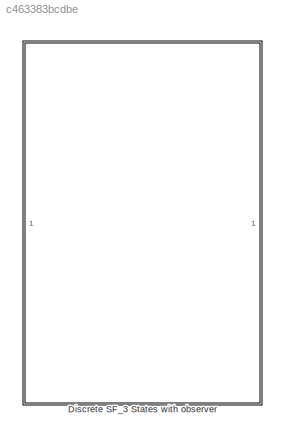
MODEL slx_c463383bcdbe
KIND model
CONFIG AbsTol = auto
CONFIG EnableMultiTasking = off
CONFIG FixedStep = auto
CONFIG MaxStep = auto
CONFIG MinStep = auto
CONFIG RelTol = 1e-3
CONFIG SampleTimeConstraint = Unconstrained
CONFIG Solver = VariableStepAuto
CONFIG SolverName = VariableStepAuto
CONFIG StartTime = 0.0
CONFIG StopTime = 10.0
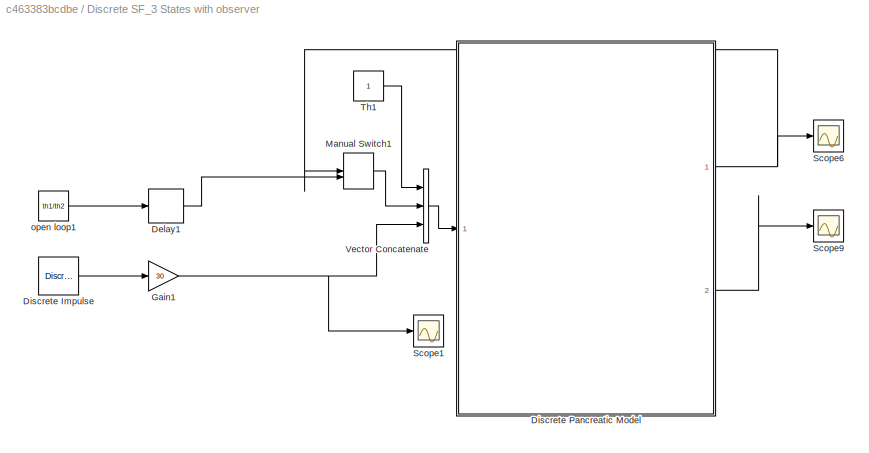
BLOCK [SubSystem] Discrete SF_3 States with observer
  Ports = []
  RequestExecContextInheritance = off
BLOCK [Delay] Discrete SF_3 States with observer/Delay1
  DelayLength = 5
  InitialCondition = th1/th2
  InputPortMap = u0
  Ports = [1, 1]
BLOCK [Reference] Discrete SF_3 States with observer/Discrete Impulse  REF=dspsrcs4/Discrete 
Impulse
  Ports = [0, 1]
  SourceBlock = dspsrcs4/Discrete \nImpulse
  SourceProductBaseCode = DS
  SourceProductName = DSP System Toolbox
  SourceType = Discrete Impulse
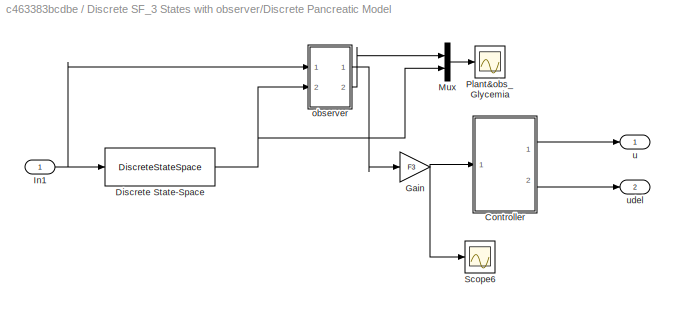
BLOCK [SubSystem] Discrete SF_3 States with observer/Discrete Pancreatic Model
  Ports = [1, 2]
  RequestExecContextInheritance = off
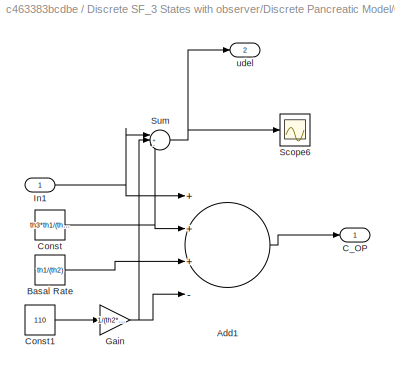
BLOCK [SubSystem] Discrete SF_3 States with observer/Discrete Pancreatic Model/Controller 
  Ports = [1, 2]
  RequestExecContextInheritance = off
BLOCK [Sum] Discrete SF_3 States with observer/Discrete Pancreatic Model/Controller /Add1
  InputSameDT = off
  Inputs = +++-
  OutDataTypeStr = Inherit: Inherit via internal rule
  Ports = [4, 1]
  SaturateOnIntegerOverflow = off
BLOCK [Constant] Discrete SF_3 States with observer/Discrete Pancreatic Model/Controller /Basal Rate
  Value = th1/(th2)
  VectorParams1D = off
BLOCK [Outport] Discrete SF_3 States with observer/Discrete Pancreatic Model/Controller /C_OP
  IconDisplay = Port number
BLOCK [Constant] Discrete SF_3 States with observer/Discrete Pancreatic Model/Controller /Const
  Value = th3*th1/(th2*47.88)
  VectorParams1D = off
BLOCK [Constant] Discrete SF_3 States with observer/Discrete Pancreatic Model/Controller /Const1
  Value = 110
  VectorParams1D = off
BLOCK [Gain] Discrete SF_3 States with observer/Discrete Pancreatic Model/Controller /Gain
  Gain = 1/(th2*47.88)
  OutDataTypeStr = Inherit: Inherit via internal rule
  ParamDataTypeStr = Inherit: Inherit via internal rule
  SaturateOnIntegerOverflow = off
BLOCK [Inport] Discrete SF_3 States with observer/Discrete Pancreatic Model/Controller /In1
  IconDisplay = Port number
BLOCK [Scope] Discrete SF_3 States with observer/Discrete Pancreatic Model/Controller /Scope6
  Floating = off
  NumInputPorts = 1
  Ports = [1]
  ScopeSpecificationString = Simulink.scopes.TimeScopeBlockCfg('CurrentConfiguration', extmgr.ConfigurationSet(extmgr.Configuration('Core','General UI',true),extmgr.Configuration('Core','Source UI',true),extmgr.Configuration('Sources','WiredSimulink',true,'DataLoggingVariableName','ScopeData2'),extmgr.Configuration('Visuals','Time Domain',true,'SerializedDisplays',{struct('MinYLimReal','-0.00787','MaxYLimReal','0.07046','YLab...<+1406ch>
BLOCK [Sum] Discrete SF_3 States with observer/Discrete Pancreatic Model/Controller /Sum
  IconShape = round
  InputSameDT = off
  Inputs = |+-+
  OutDataTypeStr = Inherit: Inherit via internal rule
  Ports = [3, 1]
  SaturateOnIntegerOverflow = off
BLOCK [Outport] Discrete SF_3 States with observer/Discrete Pancreatic Model/Controller /udel
  IconDisplay = Port number
  Port = 2
BLOCK [DiscreteStateSpace] Discrete SF_3 States with observer/Discrete Pancreatic Model/Discrete State-Space
  A = A3
  B = B3
  C = C_obs
  D = D_obs
  InitialCondition = [110; th1/th2; 0]
  SampleTime = -1
  StateName = Glycemia
BLOCK [Gain] Discrete SF_3 States with observer/Discrete Pancreatic Model/Gain
  Gain = F3
  Multiplication = Matrix(K*u)
  OutDataTypeStr = Inherit: Inherit via internal rule
  ParamDataTypeStr = Inherit: Inherit via internal rule
  SaturateOnIntegerOverflow = off
BLOCK [Inport] Discrete SF_3 States with observer/Discrete Pancreatic Model/In1
  IconDisplay = Port number
BLOCK [Mux] Discrete SF_3 States with observer/Discrete Pancreatic Model/Mux
  DisplayOption = bar
  Inputs = 2
  Ports = [2, 1]
BLOCK [Scope] Discrete SF_3 States with observer/Discrete Pancreatic Model/Plant&obs_Glycemia
  Floating = off
  NumInputPorts = 1
  Ports = [1]
  ScopeSpecificationString = Simulink.scopes.TimeScopeBlockCfg('CurrentConfiguration', extmgr.ConfigurationSet(extmgr.Configuration('Core','General UI',true),extmgr.Configuration('Core','Source UI',true),extmgr.Configuration('Sources','WiredSimulink',true,'DataLoggingVariableName','ScopeData1'),extmgr.Configuration('Visuals','Time Domain',true,'SerializedDisplays',{struct('MinYLimReal','95.4158','MaxYLimReal','240.45235','YLa...<+1416ch>
BLOCK [Scope] Discrete SF_3 States with observer/Discrete Pancreatic Model/Scope6
  Floating = off
  NumInputPorts = 1
  Ports = [1]
  ScopeSpecificationString = Simulink.scopes.TimeScopeBlockCfg('CurrentConfiguration', extmgr.ConfigurationSet(extmgr.Configuration('Core','General UI',true),extmgr.Configuration('Core','Source UI',true),extmgr.Configuration('Sources','WiredSimulink',true,'DataLoggingVariableName','ScopeData1'),extmgr.Configuration('Visuals','Time Domain',true,'SerializedDisplays',{struct('MinYLimReal','0.0017','MaxYLimReal','0.00211','YLabel...<+1401ch>
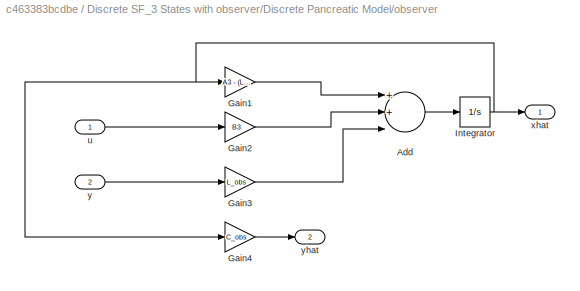
BLOCK [SubSystem] Discrete SF_3 States with observer/Discrete Pancreatic Model/observer
  Ports = [2, 2]
  RequestExecContextInheritance = off
BLOCK [Sum] Discrete SF_3 States with observer/Discrete Pancreatic Model/observer/Add
  InputSameDT = off
  Inputs = 3
  OutDataTypeStr = Inherit: Inherit via internal rule
  Ports = [3, 1]
  SaturateOnIntegerOverflow = off
BLOCK [Gain] Discrete SF_3 States with observer/Discrete Pancreatic Model/observer/Gain1
  Gain = A3 - (L_obs*C_obs)
  Multiplication = Matrix(K*u)
  OutDataTypeStr = Inherit: Inherit via internal rule
  ParamDataTypeStr = Inherit: Inherit via internal rule
  SaturateOnIntegerOverflow = off
BLOCK [Gain] Discrete SF_3 States with observer/Discrete Pancreatic Model/observer/Gain2
  Gain = B3
  Multiplication = Matrix(K*u)
  OutDataTypeStr = Inherit: Inherit via internal rule
  ParamDataTypeStr = Inherit: Inherit via internal rule
  SaturateOnIntegerOverflow = off
BLOCK [Gain] Discrete SF_3 States with observer/Discrete Pancreatic Model/observer/Gain3
  Gain = L_obs
  Multiplication = Matrix(K*u)
  OutDataTypeStr = Inherit: Inherit via internal rule
  ParamDataTypeStr = Inherit: Inherit via internal rule
  SaturateOnIntegerOverflow = off
BLOCK [Gain] Discrete SF_3 States with observer/Discrete Pancreatic Model/observer/Gain4
  Gain = C_obs
  Multiplication = Matrix(K*u)
  OutDataTypeStr = Inherit: Inherit via internal rule
  ParamDataTypeStr = Inherit: Inherit via internal rule
  SaturateOnIntegerOverflow = off
BLOCK [Integrator] Discrete SF_3 States with observer/Discrete Pancreatic Model/observer/Integrator
  InitialCondition = [110; th1/th2; 0]
  Ports = [1, 1]
BLOCK [Inport] Discrete SF_3 States with observer/Discrete Pancreatic Model/observer/u
  IconDisplay = Port number
BLOCK [Outport] Discrete SF_3 States with observer/Discrete Pancreatic Model/observer/xhat
  IconDisplay = Port number
BLOCK [Inport] Discrete SF_3 States with observer/Discrete Pancreatic Model/observer/y
  IconDisplay = Port number
  Port = 2
BLOCK [Outport] Discrete SF_3 States with observer/Discrete Pancreatic Model/observer/yhat
  IconDisplay = Port number
  Port = 2
BLOCK [Outport] Discrete SF_3 States with observer/Discrete Pancreatic Model/u
  IconDisplay = Port number
BLOCK [Outport] Discrete SF_3 States with observer/Discrete Pancreatic Model/udel
  IconDisplay = Port number
  Port = 2
BLOCK [Gain] Discrete SF_3 States with observer/Gain1
  Gain = 30
  OutDataTypeStr = Inherit: Inherit via internal rule
  ParamDataTypeStr = Inherit: Inherit via internal rule
  SaturateOnIntegerOverflow = off
BLOCK [ManualSwitch] Discrete SF_3 States with observer/Manual Switch1
BLOCK [Scope] Discrete SF_3 States with observer/Scope1
  Floating = off
  NumInputPorts = 1
  Ports = [1]
  ScopeSpecificationString = Simulink.scopes.TimeScopeBlockCfg('CurrentConfiguration', extmgr.ConfigurationSet(extmgr.Configuration('Core','General UI',true),extmgr.Configuration('Core','Source UI',true),extmgr.Configuration('Sources','WiredSimulink',true,'DataLoggingVariableName','ScopeData2'),extmgr.Configuration('Visuals','Time Domain',true,'SerializedDisplays',{struct('MinYLimReal','-1.00000','MaxYLimReal','1.00000','YLab...<+1520ch>
BLOCK [Scope] Discrete SF_3 States with observer/Scope6
  Floating = off
  NumInputPorts = 1
  Ports = [1]
  ScopeSpecificationString = Simulink.scopes.TimeScopeBlockCfg('CurrentConfiguration', extmgr.ConfigurationSet(extmgr.Configuration('Core','General UI',true),extmgr.Configuration('Core','Source UI',true),extmgr.Configuration('Sources','WiredSimulink',true,'DataLoggingVariableName','ScopeData3'),extmgr.Configuration('Visuals','Time Domain',true,'SerializedDisplays',{struct('MinYLimReal','0.00855','MaxYLimReal','0.09228','YLabe...<+1428ch>
BLOCK [Scope] Discrete SF_3 States with observer/Scope9
  Floating = off
  NumInputPorts = 1
  Ports = [1]
  ScopeSpecificationString = Simulink.scopes.TimeScopeBlockCfg('CurrentConfiguration', extmgr.ConfigurationSet(extmgr.Configuration('Core','General UI',true),extmgr.Configuration('Core','Source UI',true),extmgr.Configuration('Sources','WiredSimulink',true,'DataLoggingVariableName','ScopeData4'),extmgr.Configuration('Visuals','Time Domain',true,'SerializedDisplays',{struct('MinYLimReal','-0.00787','MaxYLimReal','0.07046','YLab...<+1458ch>
BLOCK [Constant] Discrete SF_3 States with observer/Th1
BLOCK [Concatenate] Discrete SF_3 States with observer/Vector Concatenate
  NumInputs = 3
  Ports = [3, 1]
BLOCK [Constant] Discrete SF_3 States with observer/open loop1
  Value = th1/th2
LINE Discrete SF_3 States with observer/Delay1:1 -> Discrete SF_3 States with observer/Manual Switch1:2
LINE Discrete SF_3 States with observer/Discrete Impulse:1 -> Discrete SF_3 States with observer/Gain1:1
LINE Discrete SF_3 States with observer/Discrete Pancreatic Model/Controller /Add1:1 -> Discrete SF_3 States with observer/Discrete Pancreatic Model/Controller /C_OP:1
LINE Discrete SF_3 States with observer/Discrete Pancreatic Model/Controller /Basal Rate:1 -> Discrete SF_3 States with observer/Discrete Pancreatic Model/Controller /Add1:3
LINE Discrete SF_3 States with observer/Discrete Pancreatic Model/Controller /Const1:1 -> Discrete SF_3 States with observer/Discrete Pancreatic Model/Controller /Gain:1
NET Discrete SF_3 States with observer/Discrete Pancreatic Model/Controller /Const:1 -> Discrete SF_3 States with observer/Discrete Pancreatic Model/Controller /Add1:2, Discrete SF_3 States with observer/Discrete Pancreatic Model/Controller /Sum:3
NET Discrete SF_3 States with observer/Discrete Pancreatic Model/Controller /Gain:1 -> Discrete SF_3 States with observer/Discrete Pancreatic Model/Controller /Add1:4, Discrete SF_3 States with observer/Discrete Pancreatic Model/Controller /Sum:2
NET Discrete SF_3 States with observer/Discrete Pancreatic Model/Controller /In1:1 -> Discrete SF_3 States with observer/Discrete Pancreatic Model/Controller /Add1:1, Discrete SF_3 States with observer/Discrete Pancreatic Model/Controller /Sum:1
NET Discrete SF_3 States with observer/Discrete Pancreatic Model/Controller /Sum:1 -> Discrete SF_3 States with observer/Discrete Pancreatic Model/Controller /Scope6:1, Discrete SF_3 States with observer/Discrete Pancreatic Model/Controller /udel:1
LINE Discrete SF_3 States with observer/Discrete Pancreatic Model/Controller :1 -> Discrete SF_3 States with observer/Discrete Pancreatic Model/u:1
LINE Discrete SF_3 States with observer/Discrete Pancreatic Model/Controller :2 -> Discrete SF_3 States with observer/Discrete Pancreatic Model/udel:1
NET Discrete SF_3 States with observer/Discrete Pancreatic Model/Discrete State-Space:1 -> Discrete SF_3 States with observer/Discrete Pancreatic Model/Mux:2, Discrete SF_3 States with observer/Discrete Pancreatic Model/observer:2
NET Discrete SF_3 States with observer/Discrete Pancreatic Model/Gain:1 -> Discrete SF_3 States with observer/Discrete Pancreatic Model/Controller :1, Discrete SF_3 States with observer/Discrete Pancreatic Model/Scope6:1
NET Discrete SF_3 States with observer/Discrete Pancreatic Model/In1:1 -> Discrete SF_3 States with observer/Discrete Pancreatic Model/Discrete State-Space:1, Discrete SF_3 States with observer/Discrete Pancreatic Model/observer:1
LINE Discrete SF_3 States with observer/Discrete Pancreatic Model/Mux:1 -> Discrete SF_3 States with observer/Discrete Pancreatic Model/Plant&obs_Glycemia:1
LINE Discrete SF_3 States with observer/Discrete Pancreatic Model/observer/Add:1 -> Discrete SF_3 States with observer/Discrete Pancreatic Model/observer/Integrator:1
LINE Discrete SF_3 States with observer/Discrete Pancreatic Model/observer/Gain1:1 -> Discrete SF_3 States with observer/Discrete Pancreatic Model/observer/Add:1
LINE Discrete SF_3 States with observer/Discrete Pancreatic Model/observer/Gain2:1 -> Discrete SF_3 States with observer/Discrete Pancreatic Model/observer/Add:2
LINE Discrete SF_3 States with observer/Discrete Pancreatic Model/observer/Gain3:1 -> Discrete SF_3 States with observer/Discrete Pancreatic Model/observer/Add:3
LINE Discrete SF_3 States with observer/Discrete Pancreatic Model/observer/Gain4:1 -> Discrete SF_3 States with observer/Discrete Pancreatic Model/observer/yhat:1
NET Discrete SF_3 States with observer/Discrete Pancreatic Model/observer/Integrator:1 -> Discrete SF_3 States with observer/Discrete Pancreatic Model/observer/Gain1:1, Discrete SF_3 States with observer/Discrete Pancreatic Model/observer/Gain4:1, Discrete SF_3 States with observer/Discrete Pancreatic Model/observer/xhat:1
LINE Discrete SF_3 States with observer/Discrete Pancreatic Model/observer/u:1 -> Discrete SF_3 States with observer/Discrete Pancreatic Model/observer/Gain2:1
LINE Discrete SF_3 States with observer/Discrete Pancreatic Model/observer/y:1 -> Discrete SF_3 States with observer/Discrete Pancreatic Model/observer/Gain3:1
LINE Discrete SF_3 States with observer/Discrete Pancreatic Model/observer:1 -> Discrete SF_3 States with observer/Discrete Pancreatic Model/Gain:1
LINE Discrete SF_3 States with observer/Discrete Pancreatic Model/observer:2 -> Discrete SF_3 States with observer/Discrete Pancreatic Model/Mux:1
NET Discrete SF_3 States with observer/Discrete Pancreatic Model:1 -> Discrete SF_3 States with observer/Manual Switch1:1, Discrete SF_3 States with observer/Scope6:1
LINE Discrete SF_3 States with observer/Discrete Pancreatic Model:2 -> Discrete SF_3 States with observer/Scope9:1
NET Discrete SF_3 States with observer/Gain1:1 -> Discrete SF_3 States with observer/Scope1:1, Discrete SF_3 States with observer/Vector Concatenate:3
LINE Discrete SF_3 States with observer/Manual Switch1:1 -> Discrete SF_3 States with observer/Vector Concatenate:2
LINE Discrete SF_3 States with observer/Th1:1 -> Discrete SF_3 States with observer/Vector Concatenate:1
LINE Discrete SF_3 States with observer/Vector Concatenate:1 -> Discrete SF_3 States with observer/Discrete Pancreatic Model:1
LINE Discrete SF_3 States with observer/open loop1:1 -> Discrete SF_3 States with observer/Delay1:1
note: NET lines group one-source signal fan-out (src -> all destinations, sorted); 1:1 wires keep LINE
